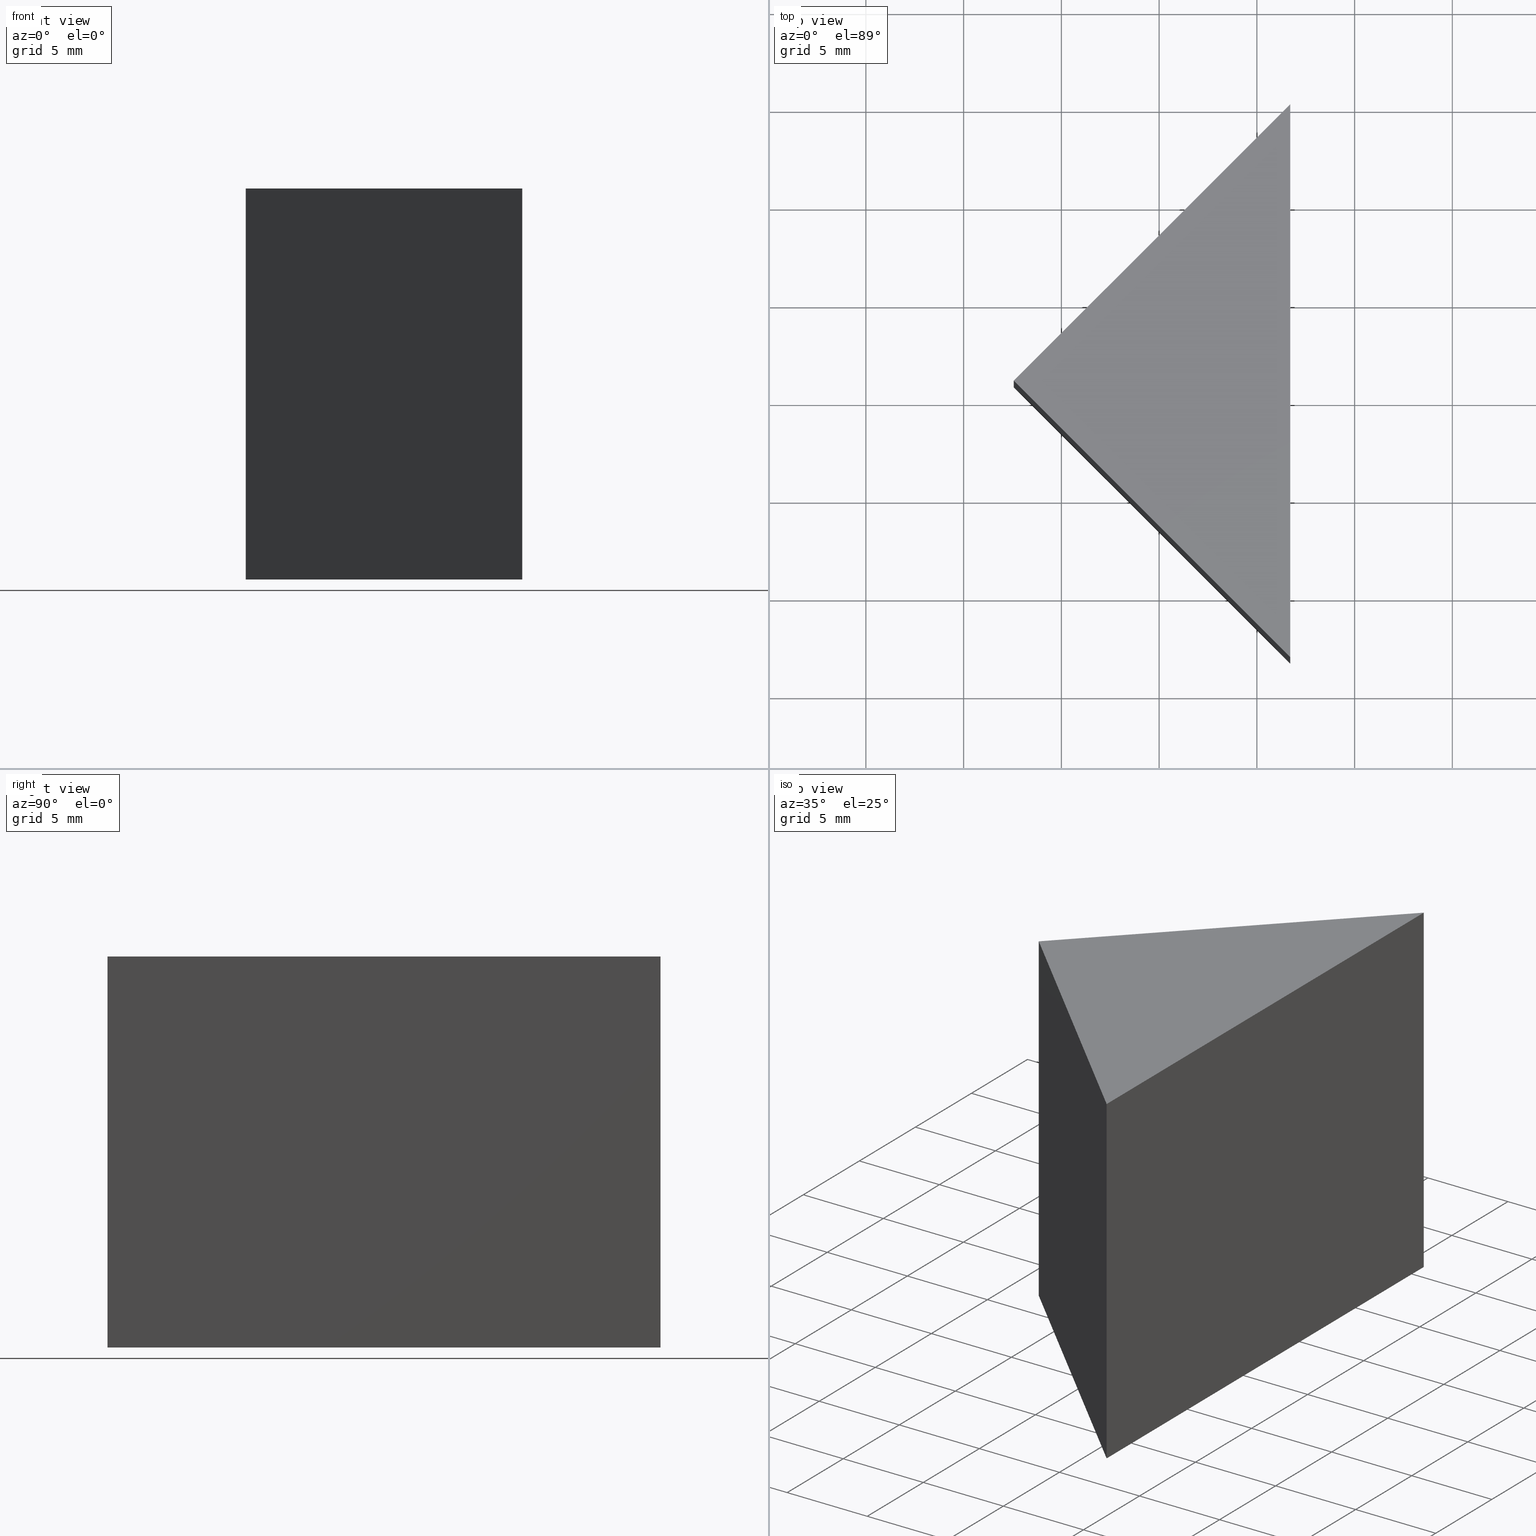
[diagram: canonical four-view strip — front | top / right | iso, engineering-drawing reading convention]
A machine part, canonical four-view strip (front | top / right | iso — engineering-drawing reading convention). The complete STEP part file that produces these views, byte-faithful:
ISO-10303-21;
HEADER;
FILE_DESCRIPTION (( 'STEP AP214' ),
    '1' );
FILE_NAME ('30004.STEP',
    '2019-08-12T08:03:40',
    ( '' ),
    ( '' ),
    'SwSTEP 2.0',
    'SolidWorks 2016',
    '' );
FILE_SCHEMA (( 'AUTOMOTIVE_DESIGN' ));
ENDSEC;

DATA;
#1 = FILL_AREA_STYLE ('',( #5 ) ) ;
#2 = DIRECTION ( 'NONE',  ( 0.0000000000000000000, -0.0000000000000000000, 1.000000000000000000 ) ) ;
#3 = CARTESIAN_POINT ( 'NONE',  ( 196.7073461950922100, 60.06111063005870000, 20.00000000000000000 ) ) ;
#4 = AXIS2_PLACEMENT_3D ( 'NONE', #130, #154, #104 ) ;
#5 = FILL_AREA_STYLE_COLOUR ( '', #77 ) ;
#6 = LINE ( 'NONE', #118, #31 ) ;
#7 = PRESENTATION_LAYER_ASSIGNMENT (  '', '', ( #151 ) ) ;
#8 = PRODUCT_RELATED_PRODUCT_CATEGORY ( 'part', '', ( #60 ) ) ;
#9 = AXIS2_PLACEMENT_3D ( 'NONE', #70, #160, #80 ) ;
#10 = PLANE ( 'NONE',  #111 ) ;
#11 = PRODUCT_DEFINITION_SHAPE ( 'NONE', 'NONE',  #85 ) ;
#12 =( NAMED_UNIT ( * ) SI_UNIT ( $, .STERADIAN. ) SOLID_ANGLE_UNIT ( ) );
#13 = APPLICATION_PROTOCOL_DEFINITION ( 'draft international standard', 'automotive_design', 1998, #155 ) ;
#14 = CARTESIAN_POINT ( 'NONE',  ( 182.5652105713612300, 45.91897500632775600, 20.00000000000000000 ) ) ;
#15 = FILL_AREA_STYLE_COLOUR ( '', #163 ) ;
#16 =( NAMED_UNIT ( * ) SI_UNIT ( $, .STERADIAN. ) SOLID_ANGLE_UNIT ( ) );
#17 = PLANE ( 'NONE',  #9 ) ;
#18 = ORIENTED_EDGE ( 'NONE', *, *, #33, .F. ) ;
#19 =( GEOMETRIC_REPRESENTATION_CONTEXT ( 3 ) GLOBAL_UNCERTAINTY_ASSIGNED_CONTEXT ( ( #90 ) ) GLOBAL_UNIT_ASSIGNED_CONTEXT ( ( #79, #131, #28 ) ) REPRESENTATION_CONTEXT ( 'NONE', 'WORKASPACE' ) );
#20 = VECTOR ( 'NONE', #52, 999.9999999999998900 ) ;
#21 = VECTOR ( 'NONE', #65, 1000.000000000000000 ) ;
#22 = VECTOR ( 'NONE', #72, 999.9999999999998900 ) ;
#23 = VERTEX_POINT ( 'NONE', #91 ) ;
#24 = DIRECTION ( 'NONE',  ( -0.0000000000000000000, -0.0000000000000000000, -1.000000000000000000 ) ) ;
#25 = CARTESIAN_POINT ( 'NONE',  ( 0.0000000000000000000, 0.0000000000000000000, 0.0000000000000000000 ) ) ;
#26 = SURFACE_STYLE_USAGE ( .BOTH. , #136 ) ;
#27 = FACE_OUTER_BOUND ( 'NONE', #86, .T. ) ;
#28 =( NAMED_UNIT ( * ) SI_UNIT ( $, .STERADIAN. ) SOLID_ANGLE_UNIT ( ) );
#29 = DIRECTION ( 'NONE',  ( -0.0000000000000000000, -0.0000000000000000000, -1.000000000000000000 ) ) ;
#30 = UNCERTAINTY_MEASURE_WITH_UNIT (LENGTH_MEASURE( 1.000000000000000100E-005 ), #73, 'distance_accuracy_value', 'NONE');
#31 = VECTOR ( 'NONE', #94, 1000.000000000000100 ) ;
#32 = FACE_OUTER_BOUND ( 'NONE', #44, .T. ) ;
#33 = EDGE_CURVE ( 'NONE', #57, #117, #153, .T. ) ;
#34 = ORIENTED_EDGE ( 'NONE', *, *, #35, .F. ) ;
#35 = EDGE_CURVE ( 'NONE', #23, #159, #55, .T. ) ;
#36 = ADVANCED_FACE ( 'NONE', ( #32 ), #92, .T. ) ;
#37 = FILL_AREA_STYLE ('',( #15 ) ) ;
#38 = LINE ( 'NONE', #119, #98 ) ;
#39 = ORIENTED_EDGE ( 'NONE', *, *, #147, .F. ) ;
#40 = PLANE ( 'NONE',  #169 ) ;
#41 = CARTESIAN_POINT ( 'NONE',  ( 196.7073461950922100, 60.06111063005870000, 0.0000000000000000000 ) ) ;
#42 =( NAMED_UNIT ( * ) PLANE_ANGLE_UNIT ( ) SI_UNIT ( $, .RADIAN. ) );
#43 = EDGE_CURVE ( 'NONE', #103, #23, #87, .T. ) ;
#44 = EDGE_LOOP ( 'NONE', ( #45, #121, #162 ) ) ;
#45 = ORIENTED_EDGE ( 'NONE', *, *, #43, .T. ) ;
#46 = AXIS2_PLACEMENT_3D ( 'NONE', #95, #146, #156 ) ;
#47 = CARTESIAN_POINT ( 'NONE',  ( 182.5652105713612300, 45.91897500632775600, 0.0000000000000000000 ) ) ;
#48 = CARTESIAN_POINT ( 'NONE',  ( 196.7073461950922100, 60.06111063005870000, 20.00000000000000000 ) ) ;
#49 = ORIENTED_EDGE ( 'NONE', *, *, #33, .T. ) ;
#50 = CARTESIAN_POINT ( 'NONE',  ( 0.0000000000000000000, 0.0000000000000000000, 0.0000000000000000000 ) ) ;
#51 = PLANE ( 'NONE',  #46 ) ;
#52 = DIRECTION ( 'NONE',  ( -0.7071067811865486800, -0.7071067811865464600, 0.0000000000000000000 ) ) ;
#53 = EDGE_CURVE ( 'NONE', #103, #117, #135, .T. ) ;
#54 = LINE ( 'NONE', #3, #20 ) ;
#55 = LINE ( 'NONE', #48, #21 ) ;
#56 = DIRECTION ( 'NONE',  ( 0.0000000000000000000, 1.000000000000000000, 0.0000000000000000000 ) ) ;
#57 = VERTEX_POINT ( 'NONE', #47 ) ;
#58 = FACE_OUTER_BOUND ( 'NONE', #114, .T. ) ;
#59 = ORIENTED_EDGE ( 'NONE', *, *, #113, .F. ) ;
#60 = PRODUCT ( '30004', '30004', '', ( #132 ) ) ;
#61 = SURFACE_STYLE_FILL_AREA ( #37 ) ;
#62 = ADVANCED_FACE ( 'NONE', ( #27 ), #10, .F. ) ;
#63 = CARTESIAN_POINT ( 'NONE',  ( 196.7073461950922100, 31.77683938259680800, 20.00000000000000000 ) ) ;
#64 = ORIENTED_EDGE ( 'NONE', *, *, #43, .F. ) ;
#65 = DIRECTION ( 'NONE',  ( -0.0000000000000000000, -0.0000000000000000000, -1.000000000000000000 ) ) ;
#66 = DIRECTION ( 'NONE',  ( 1.000000000000000000, 0.0000000000000000000, -0.0000000000000000000 ) ) ;
#67 = VECTOR ( 'NONE', #29, 1000.000000000000000 ) ;
#68 = ADVANCED_FACE ( 'NONE', ( #58 ), #40, .F. ) ;
#69 = FACE_OUTER_BOUND ( 'NONE', #101, .T. ) ;
#70 = CARTESIAN_POINT ( 'NONE',  ( 196.7073461950922100, 31.77683938259680800, 20.00000000000000000 ) ) ;
#71 = SHAPE_DEFINITION_REPRESENTATION ( #11, #112 ) ;
#72 = DIRECTION ( 'NONE',  ( -0.7071067811865486800, -0.7071067811865464600, 0.0000000000000000000 ) ) ;
#73 =( LENGTH_UNIT ( ) NAMED_UNIT ( * ) SI_UNIT ( .MILLI., .METRE. ) );
#74 = PRESENTATION_STYLE_ASSIGNMENT (( #149 ) ) ;
#75 =( GEOMETRIC_REPRESENTATION_CONTEXT ( 3 ) GLOBAL_UNCERTAINTY_ASSIGNED_CONTEXT ( ( #139 ) ) GLOBAL_UNIT_ASSIGNED_CONTEXT ( ( #110, #42, #16 ) ) REPRESENTATION_CONTEXT ( 'NONE', 'WORKASPACE' ) );
#76 = DIRECTION ( 'NONE',  ( 0.7071067811865483500, -0.7071067811865466800, 0.0000000000000000000 ) ) ;
#77 = COLOUR_RGB ( '',1.000000000000000000, 1.000000000000000000, 1.000000000000000000 ) ;
#78 = PRODUCT_DEFINITION_FORMATION_WITH_SPECIFIED_SOURCE ( '�κ�', '', #60, .NOT_KNOWN. ) ;
#79 =( LENGTH_UNIT ( ) NAMED_UNIT ( * ) SI_UNIT ( .MILLI., .METRE. ) );
#80 = DIRECTION ( 'NONE',  ( 0.0000000000000000000, 0.0000000000000000000, 1.000000000000000000 ) ) ;
#81 = CARTESIAN_POINT ( 'NONE',  ( 196.7073461950922100, 31.77683938259680800, 0.0000000000000000000 ) ) ;
#82 = ORIENTED_EDGE ( 'NONE', *, *, #138, .F. ) ;
#83 = STYLED_ITEM ( 'NONE', ( #74 ), #112 ) ;
#84 = ORIENTED_EDGE ( 'NONE', *, *, #35, .T. ) ;
#85 = PRODUCT_DEFINITION ( 'δ֪', '', #78, #141 ) ;
#86 = EDGE_LOOP ( 'NONE', ( #127, #82, #59, #84 ) ) ;
#87 = LINE ( 'NONE', #63, #166 ) ;
#88 = VERTEX_POINT ( 'NONE', #14 ) ;
#89 = MECHANICAL_DESIGN_GEOMETRIC_PRESENTATION_REPRESENTATION (  '', ( #151 ), #19 ) ;
#90 = UNCERTAINTY_MEASURE_WITH_UNIT (LENGTH_MEASURE( 1.000000000000000100E-005 ), #79, 'distance_accuracy_value', 'NONE');
#91 = CARTESIAN_POINT ( 'NONE',  ( 196.7073461950922100, 60.06111063005870000, 20.00000000000000000 ) ) ;
#92 = PLANE ( 'NONE',  #4 ) ;
#93 =( NAMED_UNIT ( * ) PLANE_ANGLE_UNIT ( ) SI_UNIT ( $, .RADIAN. ) );
#94 = DIRECTION ( 'NONE',  ( 0.7071067811865483500, -0.7071067811865466800, 0.0000000000000000000 ) ) ;
#95 = CARTESIAN_POINT ( 'NONE',  ( 182.5652105713612300, 45.91897500632775600, 20.00000000000000000 ) ) ;
#96 = FACE_OUTER_BOUND ( 'NONE', #150, .T. ) ;
#97 = CARTESIAN_POINT ( 'NONE',  ( 196.7073461950922100, 60.06111063005870000, 0.0000000000000000000 ) ) ;
#98 = VECTOR ( 'NONE', #56, 1000.000000000000000 ) ;
#99 = VECTOR ( 'NONE', #24, 1000.000000000000000 ) ;
#100 = PRESENTATION_LAYER_ASSIGNMENT (  '', '', ( #83 ) ) ;
#101 = EDGE_LOOP ( 'NONE', ( #165, #34, #64, #124 ) ) ;
#102 = LINE ( 'NONE', #158, #67 ) ;
#103 = VERTEX_POINT ( 'NONE', #133 ) ;
#104 = DIRECTION ( 'NONE',  ( 1.000000000000000000, 0.0000000000000000000, -0.0000000000000000000 ) ) ;
#105 = DIRECTION ( 'NONE',  ( 1.000000000000000000, 0.0000000000000000000, 0.0000000000000000000 ) ) ;
#106 = DIRECTION ( 'NONE',  ( 0.0000000000000000000, 1.000000000000000000, 0.0000000000000000000 ) ) ;
#107 = LINE ( 'NONE', #97, #22 ) ;
#108 = DIRECTION ( 'NONE',  ( 0.7071067811865464600, -0.7071067811865486800, 0.0000000000000000000 ) ) ;
#109 = ADVANCED_FACE ( 'NONE', ( #96 ), #51, .F. ) ;
#110 =( LENGTH_UNIT ( ) NAMED_UNIT ( * ) SI_UNIT ( .MILLI., .METRE. ) );
#111 = AXIS2_PLACEMENT_3D ( 'NONE', #143, #108, #157 ) ;
#112 = ADVANCED_BREP_SHAPE_REPRESENTATION ( '30004', ( #122, #126 ), #75 ) ;
#113 = EDGE_CURVE ( 'NONE', #23, #88, #54, .T. ) ;
#114 = EDGE_LOOP ( 'NONE', ( #152, #18, #129 ) ) ;
#115 =( GEOMETRIC_REPRESENTATION_CONTEXT ( 3 ) GLOBAL_UNCERTAINTY_ASSIGNED_CONTEXT ( ( #30 ) ) GLOBAL_UNIT_ASSIGNED_CONTEXT ( ( #73, #93, #12 ) ) REPRESENTATION_CONTEXT ( 'NONE', 'WORKASPACE' ) );
#116 = APPLICATION_PROTOCOL_DEFINITION ( 'draft international standard', 'automotive_design', 1998, #134 ) ;
#117 = VERTEX_POINT ( 'NONE', #81 ) ;
#118 = CARTESIAN_POINT ( 'NONE',  ( 182.5652105713612300, 45.91897500632775600, 20.00000000000000000 ) ) ;
#119 = CARTESIAN_POINT ( 'NONE',  ( 196.7073461950922100, 31.77683938259680800, 0.0000000000000000000 ) ) ;
#120 = SURFACE_SIDE_STYLE ('',( #167 ) ) ;
#121 = ORIENTED_EDGE ( 'NONE', *, *, #113, .T. ) ;
#122 = MANIFOLD_SOLID_BREP ( '͹̨-����1', #137 ) ;
#123 = ORIENTED_EDGE ( 'NONE', *, *, #53, .F. ) ;
#124 = ORIENTED_EDGE ( 'NONE', *, *, #53, .T. ) ;
#125 = MECHANICAL_DESIGN_GEOMETRIC_PRESENTATION_REPRESENTATION (  '', ( #83 ), #115 ) ;
#126 = AXIS2_PLACEMENT_3D ( 'NONE', #50, #148, #105 ) ;
#127 = ORIENTED_EDGE ( 'NONE', *, *, #161, .T. ) ;
#128 = PRESENTATION_STYLE_ASSIGNMENT (( #26 ) ) ;
#129 = ORIENTED_EDGE ( 'NONE', *, *, #161, .F. ) ;
#130 = CARTESIAN_POINT ( 'NONE',  ( 0.0000000000000000000, 0.0000000000000000000, 20.00000000000000000 ) ) ;
#131 =( NAMED_UNIT ( * ) PLANE_ANGLE_UNIT ( ) SI_UNIT ( $, .RADIAN. ) );
#132 = PRODUCT_CONTEXT ( 'NONE', #134, 'mechanical' ) ;
#133 = CARTESIAN_POINT ( 'NONE',  ( 196.7073461950922100, 31.77683938259680800, 20.00000000000000000 ) ) ;
#134 = APPLICATION_CONTEXT ( 'automotive_design' ) ;
#135 = LINE ( 'NONE', #144, #99 ) ;
#136 = SURFACE_SIDE_STYLE ('',( #61 ) ) ;
#137 = CLOSED_SHELL ( 'NONE', ( #168, #62, #109, #36, #68 ) ) ;
#138 = EDGE_CURVE ( 'NONE', #88, #57, #102, .T. ) ;
#139 = UNCERTAINTY_MEASURE_WITH_UNIT (LENGTH_MEASURE( 1.000000000000000100E-005 ), #110, 'distance_accuracy_value', 'NONE');
#140 = VECTOR ( 'NONE', #76, 1000.000000000000100 ) ;
#141 = PRODUCT_DEFINITION_CONTEXT ( 'detailed design', #155, 'design' ) ;
#142 = EDGE_CURVE ( 'NONE', #117, #159, #38, .T. ) ;
#143 = CARTESIAN_POINT ( 'NONE',  ( 196.7073461950922100, 60.06111063005870000, 20.00000000000000000 ) ) ;
#144 = CARTESIAN_POINT ( 'NONE',  ( 196.7073461950922100, 31.77683938259680800, 20.00000000000000000 ) ) ;
#145 = CARTESIAN_POINT ( 'NONE',  ( 182.5652105713612300, 45.91897500632775600, 0.0000000000000000000 ) ) ;
#146 = DIRECTION ( 'NONE',  ( 0.7071067811865468000, 0.7071067811865483500, -0.0000000000000000000 ) ) ;
#147 = EDGE_CURVE ( 'NONE', #88, #103, #6, .T. ) ;
#148 = DIRECTION ( 'NONE',  ( 0.0000000000000000000, 0.0000000000000000000, 1.000000000000000000 ) ) ;
#149 = SURFACE_STYLE_USAGE ( .BOTH. , #120 ) ;
#150 = EDGE_LOOP ( 'NONE', ( #49, #123, #39, #164 ) ) ;
#151 = STYLED_ITEM ( 'NONE', ( #128 ), #122 ) ;
#152 = ORIENTED_EDGE ( 'NONE', *, *, #142, .F. ) ;
#153 = LINE ( 'NONE', #145, #140 ) ;
#154 = DIRECTION ( 'NONE',  ( 0.0000000000000000000, -0.0000000000000000000, 1.000000000000000000 ) ) ;
#155 = APPLICATION_CONTEXT ( 'automotive_design' ) ;
#156 = DIRECTION ( 'NONE',  ( -0.7071067811865483500, 0.7071067811865468000, 0.0000000000000000000 ) ) ;
#157 = DIRECTION ( 'NONE',  ( 0.7071067811865486800, 0.7071067811865464600, 0.0000000000000000000 ) ) ;
#158 = CARTESIAN_POINT ( 'NONE',  ( 182.5652105713612300, 45.91897500632775600, 20.00000000000000000 ) ) ;
#159 = VERTEX_POINT ( 'NONE', #41 ) ;
#160 = DIRECTION ( 'NONE',  ( -1.000000000000000000, 0.0000000000000000000, 0.0000000000000000000 ) ) ;
#161 = EDGE_CURVE ( 'NONE', #159, #57, #107, .T. ) ;
#162 = ORIENTED_EDGE ( 'NONE', *, *, #147, .T. ) ;
#163 = COLOUR_RGB ( '',1.000000000000000000, 1.000000000000000000, 1.000000000000000000 ) ;
#164 = ORIENTED_EDGE ( 'NONE', *, *, #138, .T. ) ;
#165 = ORIENTED_EDGE ( 'NONE', *, *, #142, .T. ) ;
#166 = VECTOR ( 'NONE', #106, 1000.000000000000000 ) ;
#167 = SURFACE_STYLE_FILL_AREA ( #1 ) ;
#168 = ADVANCED_FACE ( 'NONE', ( #69 ), #17, .F. ) ;
#169 = AXIS2_PLACEMENT_3D ( 'NONE', #25, #2, #66 ) ;
ENDSEC;
END-ISO-10303-21;
